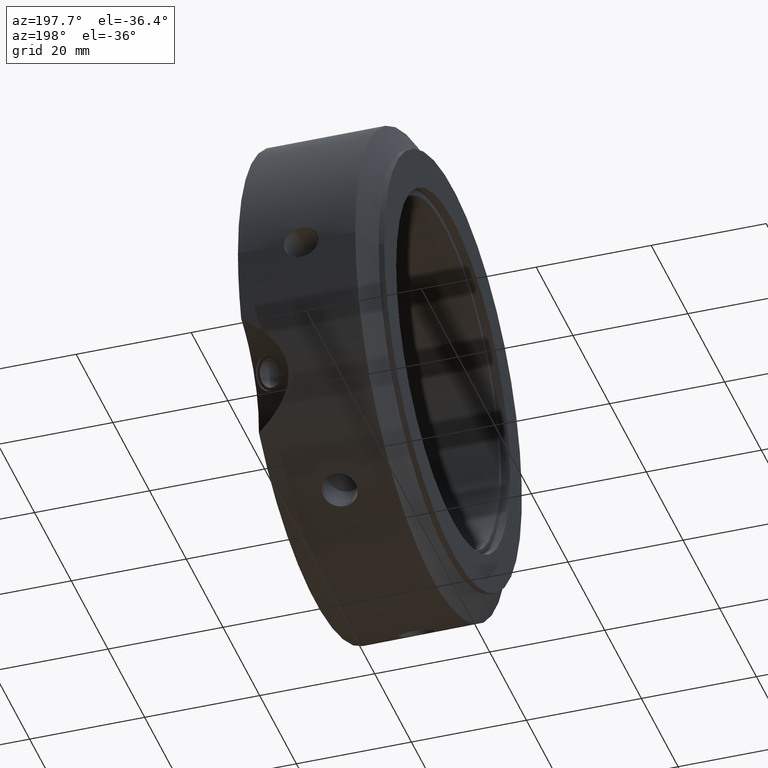
[diagram: clean part render]
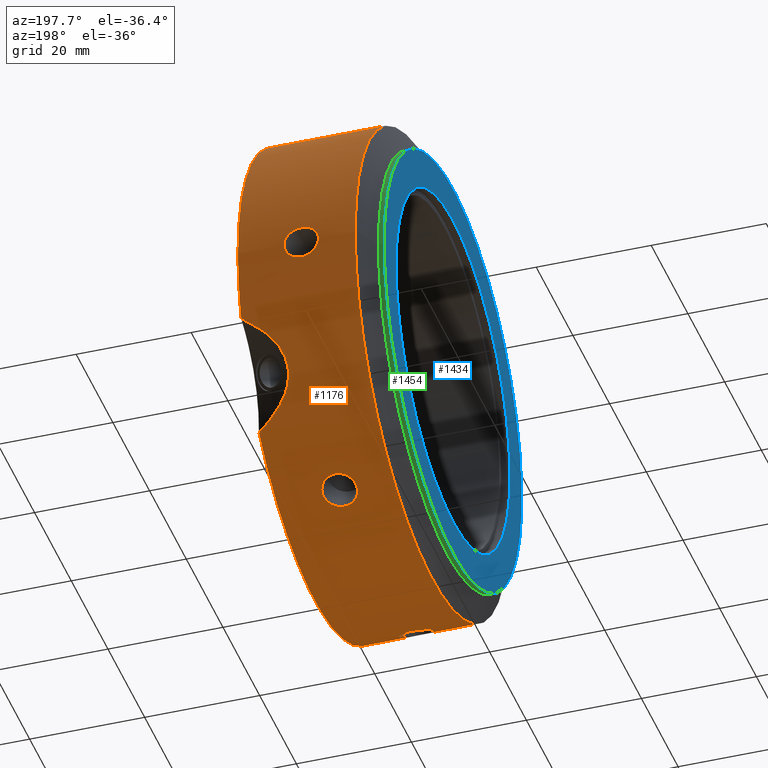
[diagram: same view with three faces highlighted in distinct colors, each labeled with its STEP entity id]
A machine part, auxiliary view with three faces highlighted in distinct colors.
Their STEP definitions:

[orange] entity #1176 — the highlighted cylindrical surface (bore or boss wall) has radius 42 mm, axis along (1, 0, 0).
#90=CARTESIAN_POINT('',(10.0,21.000000000000043,36.37306695894641));
#91=VERTEX_POINT('',#90);
#92=CARTESIAN_POINT('',(16.0,21.000000000000043,36.37306695894641));
#93=VERTEX_POINT('',#92);
#94=CARTESIAN_POINT('',(10.0,21.000000000000043,36.37306695894641));
#95=CARTESIAN_POINT('',(10.0,21.326339335730424,36.184654855615307));
#96=CARTESIAN_POINT('',(10.07533466498386,21.671559271009432,35.978885311008597));
#97=CARTESIAN_POINT('',(10.381535666751155,22.301532080152381,35.591829628988911));
#98=CARTESIAN_POINT('',(10.612394908988422,22.586438431574614,35.410787733298037));
#99=CARTESIAN_POINT('',(11.144964638746217,23.034190742379845,35.121178025303479));
#100=CARTESIAN_POINT('',(11.482221620102111,23.226945707765047,34.993321295956946));
#101=CARTESIAN_POINT('',(12.221321574865247,23.481998319643893,34.82268365881243));
#102=CARTESIAN_POINT('',(12.623175460991902,23.544436277006767,34.780159867343457));
#103=CARTESIAN_POINT('',(13.376824539008098,23.544436277006767,34.780159867343457));
#104=CARTESIAN_POINT('',(13.778678425134753,23.481998319643893,34.82268365881243));
#105=CARTESIAN_POINT('',(14.517778379897891,23.226945707765047,34.993321295956946));
#106=CARTESIAN_POINT('',(14.855035361253785,23.034190742379845,35.121178025303479));
#107=CARTESIAN_POINT('',(15.387605091011579,22.586438431574614,35.410787733298037));
#108=CARTESIAN_POINT('',(15.618464333248845,22.301532080152381,35.591829628988911));
#109=CARTESIAN_POINT('',(15.924665335016142,21.671559271009432,35.978885311008597));
#110=CARTESIAN_POINT('',(16.0,21.326339335730424,36.184654855615307));
#111=CARTESIAN_POINT('',(16.0,21.000000000000043,36.37306695894641));
#112=B_SPLINE_CURVE_WITH_KNOTS('',3,(#94,#95,#96,#97,#98,#99,#100,#101,#102,#103,#104,#105,#106,#107,#108,#109,#110,#111),.UNSPECIFIED.,.F.,.U.,(4,2,2,2,2,2,2,2,4),(0.452189247402177,0.565236509400836,0.678283771399495,0.791331133101924,0.904378494804354,1.017425856506783,1.130473218209213,1.243520480207872,1.356567742206531),.UNSPECIFIED.);
#113=EDGE_CURVE('',#91,#93,#112,.T.);
#115=CARTESIAN_POINT('',(16.0,21.000000000000043,36.37306695894641));
#116=CARTESIAN_POINT('',(16.0,20.673660664269661,36.561479062277513));
#117=CARTESIAN_POINT('',(15.92466533501614,20.322849043675582,36.757563523818597));
#118=CARTESIAN_POINT('',(15.618464333248845,19.672662585795955,37.109608139219993));
#119=CARTESIAN_POINT('',(15.387605091011578,19.373422529267252,37.265823329405748));
#120=CARTESIAN_POINT('',(14.855035361253782,18.898737009558754,37.508783351168987));
#121=CARTESIAN_POINT('',(14.517778379897887,18.691632351207272,37.611785683224888));
#122=CARTESIAN_POINT('',(13.77867842513475,18.416329516658941,37.747348905841285));
#123=CARTESIAN_POINT('',(13.376824539008098,18.348283854300135,37.780159867343457));
#124=CARTESIAN_POINT('',(13.0,18.348283854300135,37.780159867343457));
#125=CARTESIAN_POINT('',(12.623175460991902,18.348283854300135,37.780159867343457));
#126=CARTESIAN_POINT('',(12.221321574865254,18.416329516658941,37.747348905841285));
#127=CARTESIAN_POINT('',(11.482221620102116,18.691632351207268,37.611785683224895));
#128=CARTESIAN_POINT('',(11.144964638746217,18.898737009558751,37.508783351168987));
#129=CARTESIAN_POINT('',(10.612394908988422,19.373422529267245,37.265823329405748));
#130=CARTESIAN_POINT('',(10.381535666751159,19.672662585795951,37.109608139219993));
#131=CARTESIAN_POINT('',(10.075334664983862,20.322849043675582,36.757563523818597));
#132=CARTESIAN_POINT('',(9.999999999999998,20.673660664269665,36.561479062277506));
#133=CARTESIAN_POINT('',(9.999999999999998,21.000000000000046,36.37306695894641));
#134=B_SPLINE_CURVE_WITH_KNOTS('',3,(#115,#116,#117,#118,#119,#120,#121,#122,#123,#124,#125,#126,#127,#128,#129,#130,#131,#132,#133),.UNSPECIFIED.,.F.,.U.,(4,2,2,2,3,2,2,2,4),(1.356567742206531,1.46961500420519,1.582662266203849,1.695709627906278,1.808756989608708,1.921804351311137,2.034851713013566,2.147898975012225,2.260946237010884),.UNSPECIFIED.);
#135=EDGE_CURVE('',#93,#91,#134,.T.);
#202=CARTESIAN_POINT('',(10.0,42.000000000000014,-2.797762E-014));
#203=VERTEX_POINT('',#202);
#204=CARTESIAN_POINT('',(16.0,42.000000000000014,-2.886580E-014));
#205=VERTEX_POINT('',#204);
#206=CARTESIAN_POINT('',(10.0,42.000000000000014,-3.066991E-014));
#207=CARTESIAN_POINT('',(10.0,42.000000000000014,-0.376824206662228));
#208=CARTESIAN_POINT('',(10.07533466498386,41.994408314684939,-0.778678212810027));
#209=CARTESIAN_POINT('',(10.381535666751159,41.974194665948261,-1.517778510231108));
#210=CARTESIAN_POINT('',(10.612394908988422,41.959860960841795,-1.855035596107739));
#211=CARTESIAN_POINT('',(11.144964638746217,41.932927751938536,-2.387605325865534));
#212=CARTESIAN_POINT('',(11.482221620102111,41.918578058972244,-2.618464387267969));
#213=CARTESIAN_POINT('',(12.22132157486525,41.898327836302755,-2.924665247028883));
#214=CARTESIAN_POINT('',(12.623175460991902,41.892720131306831,-3.000000000000031));
#215=CARTESIAN_POINT('',(13.376824539008098,41.892720131306831,-3.000000000000031));
#216=CARTESIAN_POINT('',(13.778678425134753,41.898327836302755,-2.924665247028882));
#217=CARTESIAN_POINT('',(14.517778379897891,41.918578058972244,-2.618464387267969));
#218=CARTESIAN_POINT('',(14.855035361253783,41.932927751938536,-2.387605325865534));
#219=CARTESIAN_POINT('',(15.387605091011578,41.959860960841795,-1.85503559610774));
#220=CARTESIAN_POINT('',(15.618464333248843,41.974194665948261,-1.517778510231109));
#221=CARTESIAN_POINT('',(15.924665335016142,41.994408314684939,-0.778678212810028));
#222=CARTESIAN_POINT('',(16.0,42.000000000000014,-0.376824206662229));
#223=CARTESIAN_POINT('',(16.0,42.000000000000014,-3.164136E-014));
#224=B_SPLINE_CURVE_WITH_KNOTS('',3,(#206,#207,#208,#209,#210,#211,#212,#213,#214,#215,#216,#217,#218,#219,#220,#221,#222,#223),.UNSPECIFIED.,.F.,.U.,(4,2,2,2,2,2,2,2,4),(0.452189247402177,0.565236509400836,0.678283771399495,0.791331133101925,0.904378494804354,1.017425856506783,1.130473218209213,1.243520480207872,1.356567742206531),.UNSPECIFIED.);
#225=EDGE_CURVE('',#203,#205,#224,.T.);
#227=CARTESIAN_POINT('',(16.0,42.000000000000014,-3.122502E-014));
#228=CARTESIAN_POINT('',(16.0,42.000000000000014,0.376824206662166));
#229=CARTESIAN_POINT('',(15.924665335016142,41.994408314684939,0.778678212809965));
#230=CARTESIAN_POINT('',(15.618464333248843,41.974194665948261,1.517778510231046));
#231=CARTESIAN_POINT('',(15.387605091011578,41.959860960841795,1.855035596107677));
#232=CARTESIAN_POINT('',(14.855035361253783,41.932927751938536,2.387605325865472));
#233=CARTESIAN_POINT('',(14.517778379897891,41.918578058972244,2.618464387267907));
#234=CARTESIAN_POINT('',(13.778678425134752,41.898327836302755,2.924665247028822));
#235=CARTESIAN_POINT('',(13.376824539008098,41.892720131306831,2.99999999999997));
#236=CARTESIAN_POINT('',(13.0,41.892720131306831,2.99999999999997));
#237=CARTESIAN_POINT('',(12.623175460991902,41.892720131306831,2.99999999999997));
#238=CARTESIAN_POINT('',(12.221321574865247,41.898327836302762,2.924665247028821));
#239=CARTESIAN_POINT('',(11.482221620102111,41.918578058972251,2.618464387267908));
#240=CARTESIAN_POINT('',(11.144964638746217,41.932927751938536,2.387605325865473));
#241=CARTESIAN_POINT('',(10.612394908988422,41.959860960841795,1.855035596107677));
#242=CARTESIAN_POINT('',(10.381535666751159,41.974194665948261,1.517778510231047));
#243=CARTESIAN_POINT('',(10.07533466498386,41.994408314684939,0.778678212809966));
#244=CARTESIAN_POINT('',(10.0,42.000000000000014,0.376824206662166));
#245=CARTESIAN_POINT('',(10.0,42.000000000000014,-3.087808E-014));
#246=B_SPLINE_CURVE_WITH_KNOTS('',3,(#227,#228,#229,#230,#231,#232,#233,#234,#235,#236,#237,#238,#239,#240,#241,#242,#243,#244,#245),.UNSPECIFIED.,.F.,.U.,(4,2,2,2,3,2,2,2,4),(1.356567742206531,1.46961500420519,1.582662266203849,1.695709627906278,1.808756989608708,1.921804351311137,2.034851713013566,2.147898975012225,2.260946237010884),.UNSPECIFIED.);
#247=EDGE_CURVE('',#205,#203,#246,.T.);
#314=CARTESIAN_POINT('',(10.0,20.999999999999996,-36.373066958946445));
#315=VERTEX_POINT('',#314);
#316=CARTESIAN_POINT('',(16.0,20.999999999999996,-36.373066958946445));
#317=VERTEX_POINT('',#316);
#318=CARTESIAN_POINT('',(10.0,20.999999999999993,-36.373066958946438));
#319=CARTESIAN_POINT('',(10.0,20.673660664269615,-36.561479062277535));
#320=CARTESIAN_POINT('',(10.075334664983862,20.322849043675536,-36.757563523818618));
#321=CARTESIAN_POINT('',(10.381535666751159,19.672662585795901,-37.109608139220015));
#322=CARTESIAN_POINT('',(10.612394908988422,19.373422529267202,-37.265823329405777));
#323=CARTESIAN_POINT('',(11.144964638746217,18.898737009558705,-37.508783351169015));
#324=CARTESIAN_POINT('',(11.482221620102111,18.691632351207215,-37.611785683224916));
#325=CARTESIAN_POINT('',(12.221321574865245,18.416329516658887,-37.747348905841307));
#326=CARTESIAN_POINT('',(12.623175460991902,18.348283854300085,-37.780159867343485));
#327=CARTESIAN_POINT('',(13.376824539008098,18.348283854300085,-37.780159867343485));
#328=CARTESIAN_POINT('',(13.778678425134752,18.416329516658887,-37.747348905841314));
#329=CARTESIAN_POINT('',(14.517778379897885,18.691632351207211,-37.611785683224923));
#330=CARTESIAN_POINT('',(14.85503536125378,18.898737009558701,-37.508783351169022));
#331=CARTESIAN_POINT('',(15.387605091011576,19.373422529267195,-37.265823329405784));
#332=CARTESIAN_POINT('',(15.618464333248841,19.672662585795898,-37.109608139220015));
#333=CARTESIAN_POINT('',(15.92466533501614,20.322849043675536,-36.757563523818618));
#334=CARTESIAN_POINT('',(16.0,20.673660664269615,-36.561479062277535));
#335=CARTESIAN_POINT('',(16.0,20.999999999999996,-36.373066958946431));
#336=B_SPLINE_CURVE_WITH_KNOTS('',3,(#318,#319,#320,#321,#322,#323,#324,#325,#326,#327,#328,#329,#330,#331,#332,#333,#334,#335),.UNSPECIFIED.,.F.,.U.,(4,2,2,2,2,2,2,2,4),(0.452189247402177,0.565236509400836,0.678283771399495,0.791331133101924,0.904378494804353,1.017425856506783,1.130473218209212,1.243520480207871,1.356567742206531),.UNSPECIFIED.);
#337=EDGE_CURVE('',#315,#317,#336,.T.);
#339=CARTESIAN_POINT('',(16.0,20.999999999999986,-36.373066958946438));
#340=CARTESIAN_POINT('',(16.0,21.326339335730363,-36.184654855615342));
#341=CARTESIAN_POINT('',(15.924665335016142,21.671559271009379,-35.978885311008625));
#342=CARTESIAN_POINT('',(15.618464333248843,22.301532080152327,-35.59182962898894));
#343=CARTESIAN_POINT('',(15.387605091011579,22.586438431574571,-35.410787733298072));
#344=CARTESIAN_POINT('',(14.855035361253785,23.034190742379799,-35.121178025303514));
#345=CARTESIAN_POINT('',(14.517778379897893,23.226945707764997,-34.993321295956981));
#346=CARTESIAN_POINT('',(13.778678425134759,23.481998319643843,-34.822683658812458));
#347=CARTESIAN_POINT('',(13.376824539008098,23.544436277006717,-34.780159867343492));
#348=CARTESIAN_POINT('',(13.0,23.544436277006717,-34.780159867343492));
#349=CARTESIAN_POINT('',(12.623175460991902,23.544436277006717,-34.780159867343492));
#350=CARTESIAN_POINT('',(12.221321574865243,23.481998319643843,-34.822683658812458));
#351=CARTESIAN_POINT('',(11.482221620102109,23.226945707764997,-34.993321295956981));
#352=CARTESIAN_POINT('',(11.144964638746217,23.034190742379799,-35.121178025303514));
#353=CARTESIAN_POINT('',(10.612394908988424,22.586438431574571,-35.410787733298072));
#354=CARTESIAN_POINT('',(10.381535666751159,22.301532080152327,-35.59182962898894));
#355=CARTESIAN_POINT('',(10.07533466498386,21.671559271009379,-35.978885311008625));
#356=CARTESIAN_POINT('',(10.0,21.326339335730367,-36.184654855615342));
#357=CARTESIAN_POINT('',(10.0,20.999999999999993,-36.373066958946438));
#358=B_SPLINE_CURVE_WITH_KNOTS('',3,(#339,#340,#341,#342,#343,#344,#345,#346,#347,#348,#349,#350,#351,#352,#353,#354,#355,#356,#357),.UNSPECIFIED.,.F.,.U.,(4,2,2,2,3,2,2,2,4),(1.356567742206531,1.469615004205189,1.582662266203848,1.695709627906278,1.808756989608707,1.921804351311137,2.034851713013566,2.147898975012225,2.260946237010884),.UNSPECIFIED.);
#359=EDGE_CURVE('',#317,#315,#358,.T.);
#426=CARTESIAN_POINT('',(10.0,-21.000000000000018,-36.373066958946424));
#427=VERTEX_POINT('',#426);
#428=CARTESIAN_POINT('',(16.0,-21.000000000000021,-36.373066958946424));
#429=VERTEX_POINT('',#428);
#430=CARTESIAN_POINT('',(10.0,-21.000000000000021,-36.373066958946417));
#431=CARTESIAN_POINT('',(10.0,-21.326339335730403,-36.184654855615314));
#432=CARTESIAN_POINT('',(10.075334664983862,-21.671559271009407,-35.978885311008611));
#433=CARTESIAN_POINT('',(10.381535666751153,-22.301532080152349,-35.591829628988926));
#434=CARTESIAN_POINT('',(10.612394908988421,-22.586438431574596,-35.410787733298058));
#435=CARTESIAN_POINT('',(11.144964638746217,-23.034190742379828,-35.121178025303493));
#436=CARTESIAN_POINT('',(11.482221620102111,-23.226945707765022,-34.99332129595696));
#437=CARTESIAN_POINT('',(12.221321574865247,-23.481998319643868,-34.822683658812444));
#438=CARTESIAN_POINT('',(12.623175460991902,-23.544436277006746,-34.780159867343471));
#439=CARTESIAN_POINT('',(13.376824539008098,-23.544436277006746,-34.780159867343471));
#440=CARTESIAN_POINT('',(13.778678425134753,-23.481998319643868,-34.822683658812444));
#441=CARTESIAN_POINT('',(14.517778379897891,-23.226945707765022,-34.99332129595696));
#442=CARTESIAN_POINT('',(14.855035361253783,-23.034190742379828,-35.121178025303493));
#443=CARTESIAN_POINT('',(15.387605091011579,-22.586438431574596,-35.410787733298058));
#444=CARTESIAN_POINT('',(15.618464333248843,-22.301532080152356,-35.591829628988918));
#445=CARTESIAN_POINT('',(15.924665335016137,-21.671559271009414,-35.978885311008597));
#446=CARTESIAN_POINT('',(16.0,-21.326339335730399,-36.184654855615321));
#447=CARTESIAN_POINT('',(16.0,-21.000000000000018,-36.373066958946424));
#448=B_SPLINE_CURVE_WITH_KNOTS('',3,(#430,#431,#432,#433,#434,#435,#436,#437,#438,#439,#440,#441,#442,#443,#444,#445,#446,#447),.UNSPECIFIED.,.F.,.U.,(4,2,2,2,2,2,2,2,4),(0.452189247402177,0.565236509400836,0.678283771399495,0.791331133101924,0.904378494804354,1.017425856506783,1.130473218209213,1.243520480207871,1.35656774220653),.UNSPECIFIED.);
#449=EDGE_CURVE('',#427,#429,#448,.T.);
#451=CARTESIAN_POINT('',(16.0,-21.000000000000021,-36.373066958946424));
#452=CARTESIAN_POINT('',(16.0,-20.67366066426964,-36.56147906227752));
#453=CARTESIAN_POINT('',(15.92466533501614,-20.322849043675568,-36.757563523818604));
#454=CARTESIAN_POINT('',(15.618464333248843,-19.67266258579593,-37.109608139220001));
#455=CARTESIAN_POINT('',(15.387605091011578,-19.373422529267227,-37.265823329405762));
#456=CARTESIAN_POINT('',(14.855035361253783,-18.898737009558733,-37.508783351169008));
#457=CARTESIAN_POINT('',(14.517778379897891,-18.691632351207247,-37.611785683224902));
#458=CARTESIAN_POINT('',(13.778678425134753,-18.416329516658919,-37.747348905841292));
#459=CARTESIAN_POINT('',(13.376824539008098,-18.348283854300117,-37.780159867343464));
#460=CARTESIAN_POINT('',(13.0,-18.348283854300117,-37.780159867343464));
#461=CARTESIAN_POINT('',(12.623175460991902,-18.348283854300117,-37.780159867343464));
#462=CARTESIAN_POINT('',(12.221321574865247,-18.416329516658919,-37.747348905841292));
#463=CARTESIAN_POINT('',(11.482221620102111,-18.691632351207247,-37.611785683224902));
#464=CARTESIAN_POINT('',(11.144964638746217,-18.898737009558733,-37.508783351169008));
#465=CARTESIAN_POINT('',(10.612394908988422,-19.373422529267227,-37.265823329405762));
#466=CARTESIAN_POINT('',(10.381535666751159,-19.67266258579593,-37.109608139220001));
#467=CARTESIAN_POINT('',(10.07533466498386,-20.322849043675568,-36.757563523818604));
#468=CARTESIAN_POINT('',(10.0,-20.67366066426964,-36.56147906227752));
#469=CARTESIAN_POINT('',(10.0,-21.000000000000021,-36.373066958946424));
#470=B_SPLINE_CURVE_WITH_KNOTS('',3,(#451,#452,#453,#454,#455,#456,#457,#458,#459,#460,#461,#462,#463,#464,#465,#466,#467,#468,#469),.UNSPECIFIED.,.F.,.U.,(4,2,2,2,3,2,2,2,4),(1.35656774220653,1.469615004205189,1.582662266203849,1.695709627906278,1.808756989608707,1.921804351311137,2.034851713013566,2.147898975012225,2.260946237010884),.UNSPECIFIED.);
#471=EDGE_CURVE('',#429,#427,#470,.T.);
#538=CARTESIAN_POINT('',(10.0,-42.000000000000014,1.165734E-014));
#539=VERTEX_POINT('',#538);
#540=CARTESIAN_POINT('',(16.0,-42.000000000000014,1.332268E-014));
#541=VERTEX_POINT('',#540);
#542=CARTESIAN_POINT('',(10.0,-42.000000000000014,1.380840E-014));
#543=CARTESIAN_POINT('',(10.0,-42.000000000000014,0.376824206662211));
#544=CARTESIAN_POINT('',(10.07533466498386,-41.994408314684939,0.77867821281001));
#545=CARTESIAN_POINT('',(10.381535666751159,-41.974194665948261,1.517778510231092));
#546=CARTESIAN_POINT('',(10.612394908988422,-41.959860960841795,1.855035596107722));
#547=CARTESIAN_POINT('',(11.144964638746217,-41.932927751938536,2.387605325865517));
#548=CARTESIAN_POINT('',(11.482221620102111,-41.918578058972244,2.618464387267952));
#549=CARTESIAN_POINT('',(12.221321574865247,-41.898327836302755,2.924665247028865));
#550=CARTESIAN_POINT('',(12.623175460991902,-41.892720131306831,3.000000000000014));
#551=CARTESIAN_POINT('',(13.376824539008098,-41.892720131306831,3.000000000000014));
#552=CARTESIAN_POINT('',(13.778678425134752,-41.898327836302755,2.924665247028866));
#553=CARTESIAN_POINT('',(14.517778379897885,-41.918578058972244,2.618464387267955));
#554=CARTESIAN_POINT('',(14.855035361253782,-41.932927751938529,2.387605325865518));
#555=CARTESIAN_POINT('',(15.387605091011578,-41.959860960841795,1.855035596107723));
#556=CARTESIAN_POINT('',(15.618464333248843,-41.974194665948261,1.517778510231092));
#557=CARTESIAN_POINT('',(15.924665335016142,-41.994408314684939,0.778678212810011));
#558=CARTESIAN_POINT('',(16.0,-42.000000000000014,0.376824206662212));
#559=CARTESIAN_POINT('',(16.0,-42.000000000000014,1.491862E-014));
#560=B_SPLINE_CURVE_WITH_KNOTS('',3,(#542,#543,#544,#545,#546,#547,#548,#549,#550,#551,#552,#553,#554,#555,#556,#557,#558,#559),.UNSPECIFIED.,.F.,.U.,(4,2,2,2,2,2,2,2,4),(0.452189247402177,0.565236509400836,0.678283771399495,0.791331133101924,0.904378494804354,1.017425856506783,1.130473218209213,1.243520480207872,1.356567742206531),.UNSPECIFIED.);
#561=EDGE_CURVE('',#539,#541,#560,.T.);
#563=CARTESIAN_POINT('',(16.0,-42.000000000000014,1.443290E-014));
#564=CARTESIAN_POINT('',(16.0,-42.000000000000014,-0.376824206662183));
#565=CARTESIAN_POINT('',(15.924665335016142,-41.994408314684939,-0.778678212809981));
#566=CARTESIAN_POINT('',(15.618464333248843,-41.974194665948261,-1.517778510231063));
#567=CARTESIAN_POINT('',(15.387605091011578,-41.959860960841795,-1.855035596107694));
#568=CARTESIAN_POINT('',(14.855035361253783,-41.932927751938536,-2.387605325865489));
#569=CARTESIAN_POINT('',(14.517778379897891,-41.918578058972244,-2.618464387267924));
#570=CARTESIAN_POINT('',(13.778678425134753,-41.898327836302755,-2.924665247028838));
#571=CARTESIAN_POINT('',(13.376824539008098,-41.892720131306831,-2.999999999999987));
#572=CARTESIAN_POINT('',(13.0,-41.892720131306831,-2.999999999999987));
#573=CARTESIAN_POINT('',(12.623175460991902,-41.892720131306831,-2.999999999999987));
#574=CARTESIAN_POINT('',(12.221321574865247,-41.898327836302755,-2.924665247028838));
#575=CARTESIAN_POINT('',(11.482221620102111,-41.918578058972244,-2.618464387267925));
#576=CARTESIAN_POINT('',(11.144964638746217,-41.932927751938536,-2.38760532586549));
#577=CARTESIAN_POINT('',(10.612394908988422,-41.959860960841795,-1.855035596107694));
#578=CARTESIAN_POINT('',(10.381535666751159,-41.974194665948261,-1.517778510231064));
#579=CARTESIAN_POINT('',(10.07533466498386,-41.994408314684939,-0.778678212809983));
#580=CARTESIAN_POINT('',(10.0,-42.000000000000014,-0.376824206662183));
#581=CARTESIAN_POINT('',(10.0,-42.000000000000014,1.387779E-014));
#582=B_SPLINE_CURVE_WITH_KNOTS('',3,(#563,#564,#565,#566,#567,#568,#569,#570,#571,#572,#573,#574,#575,#576,#577,#578,#579,#580,#581),.UNSPECIFIED.,.F.,.U.,(4,2,2,2,3,2,2,2,4),(1.356567742206531,1.46961500420519,1.582662266203849,1.695709627906278,1.808756989608708,1.921804351311137,2.034851713013567,2.147898975012226,2.260946237010885),.UNSPECIFIED.);
#583=EDGE_CURVE('',#541,#539,#582,.T.);
#687=CARTESIAN_POINT('',(10.0,-21.0,36.373066958946431));
#688=VERTEX_POINT('',#687);
#689=CARTESIAN_POINT('',(16.0,-20.999999999999996,36.373066958946431));
#690=VERTEX_POINT('',#689);
#691=CARTESIAN_POINT('',(10.0,-20.999999999999996,36.373066958946431));
#692=CARTESIAN_POINT('',(10.0,-20.673660664269615,36.561479062277535));
#693=CARTESIAN_POINT('',(10.075334664983862,-20.322849043675539,36.757563523818618));
#694=CARTESIAN_POINT('',(10.381535666751155,-19.672662585795905,37.109608139220015));
#695=CARTESIAN_POINT('',(10.612394908988422,-19.373422529267206,37.265823329405777));
#696=CARTESIAN_POINT('',(11.144964638746217,-18.898737009558712,37.508783351169015));
#697=CARTESIAN_POINT('',(11.482221620102113,-18.691632351207225,37.611785683224916));
#698=CARTESIAN_POINT('',(12.22132157486525,-18.416329516658895,37.747348905841307));
#699=CARTESIAN_POINT('',(12.623175460991902,-18.348283854300096,37.780159867343485));
#700=CARTESIAN_POINT('',(13.376824539008098,-18.348283854300096,37.780159867343485));
#701=CARTESIAN_POINT('',(13.778678425134752,-18.416329516658895,37.747348905841307));
#702=CARTESIAN_POINT('',(14.517778379897887,-18.691632351207222,37.611785683224916));
#703=CARTESIAN_POINT('',(14.855035361253785,-18.898737009558708,37.508783351169015));
#704=CARTESIAN_POINT('',(15.387605091011579,-19.373422529267206,37.265823329405777));
#705=CARTESIAN_POINT('',(15.618464333248845,-19.672662585795905,37.109608139220015));
#706=CARTESIAN_POINT('',(15.92466533501614,-20.322849043675539,36.757563523818618));
#707=CARTESIAN_POINT('',(16.0,-20.673660664269615,36.561479062277535));
#708=CARTESIAN_POINT('',(16.0,-20.999999999999996,36.373066958946431));
#709=B_SPLINE_CURVE_WITH_KNOTS('',3,(#691,#692,#693,#694,#695,#696,#697,#698,#699,#700,#701,#702,#703,#704,#705,#706,#707,#708),.UNSPECIFIED.,.F.,.U.,(4,2,2,2,2,2,2,2,4),(0.452189247402177,0.565236509400836,0.678283771399495,0.791331133101924,0.904378494804354,1.017425856506783,1.130473218209212,1.243520480207871,1.35656774220653),.UNSPECIFIED.);
#710=EDGE_CURVE('',#688,#690,#709,.T.);
#712=CARTESIAN_POINT('',(16.0,-20.999999999999996,36.373066958946438));
#713=CARTESIAN_POINT('',(16.0,-21.326339335730378,36.184654855615335));
#714=CARTESIAN_POINT('',(15.92466533501614,-21.671559271009386,35.978885311008625));
#715=CARTESIAN_POINT('',(15.618464333248845,-22.301532080152331,35.59182962898894));
#716=CARTESIAN_POINT('',(15.387605091011578,-22.586438431574575,35.410787733298072));
#717=CARTESIAN_POINT('',(14.855035361253783,-23.03419074237981,35.121178025303514));
#718=CARTESIAN_POINT('',(14.517778379897891,-23.226945707765001,34.993321295956974));
#719=CARTESIAN_POINT('',(13.778678425134753,-23.481998319643846,34.822683658812451));
#720=CARTESIAN_POINT('',(13.376824539008098,-23.544436277006724,34.780159867343485));
#721=CARTESIAN_POINT('',(13.0,-23.544436277006724,34.780159867343485));
#722=CARTESIAN_POINT('',(12.623175460991902,-23.544436277006724,34.780159867343485));
#723=CARTESIAN_POINT('',(12.221321574865247,-23.481998319643846,34.822683658812451));
#724=CARTESIAN_POINT('',(11.482221620102111,-23.226945707765001,34.993321295956974));
#725=CARTESIAN_POINT('',(11.144964638746217,-23.03419074237981,35.121178025303514));
#726=CARTESIAN_POINT('',(10.612394908988421,-22.586438431574571,35.410787733298072));
#727=CARTESIAN_POINT('',(10.381535666751155,-22.301532080152331,35.59182962898894));
#728=CARTESIAN_POINT('',(10.075334664983862,-21.671559271009386,35.978885311008625));
#729=CARTESIAN_POINT('',(10.0,-21.326339335730378,36.184654855615335));
#730=CARTESIAN_POINT('',(10.0,-20.999999999999996,36.373066958946438));
#731=B_SPLINE_CURVE_WITH_KNOTS('',3,(#712,#713,#714,#715,#716,#717,#718,#719,#720,#721,#722,#723,#724,#725,#726,#727,#728,#729,#730),.UNSPECIFIED.,.F.,.U.,(4,2,2,2,3,2,2,2,4),(1.35656774220653,1.469615004205189,1.582662266203848,1.695709627906278,1.808756989608707,1.921804351311137,2.034851713013566,2.147898975012225,2.260946237010884),.UNSPECIFIED.);
#732=EDGE_CURVE('',#690,#688,#731,.T.);
#873=CARTESIAN_POINT('',(23.999999999999993,30.566651886041992,-28.804162763002271));
#874=VERTEX_POINT('',#873);
#875=CARTESIAN_POINT('',(23.999999999999993,40.228462630522721,-12.069415660446792));
#876=VERTEX_POINT('',#875);
#884=CARTESIAN_POINT('',(23.999999999999989,40.228462630522714,-12.069415660446781));
#885=CARTESIAN_POINT('',(23.407909019775133,40.112899948154933,-12.454596615341728));
#886=CARTESIAN_POINT('',(22.834789574577169,39.987302523093021,-12.853270807511707));
#887=CARTESIAN_POINT('',(20.973022393634754,39.520184823865819,-14.256232965415826));
#888=CARTESIAN_POINT('',(19.645364935195538,39.081292328484984,-15.45094360159419));
#889=CARTESIAN_POINT('',(18.178231537469124,38.217545357491801,-17.433846793689078));
#890=CARTESIAN_POINT('',(17.775668896788503,37.895074927230461,-18.127180536038022));
#891=CARTESIAN_POINT('',(17.222169596961031,37.182311016816705,-19.547560601872824));
#892=CARTESIAN_POINT('',(17.071796769724504,36.79180702149732,-20.274720936497296));
#893=CARTESIAN_POINT('',(17.071796769724504,35.954326896395521,-21.72527906350275));
#894=CARTESIAN_POINT('',(17.22216959696102,35.519839571646031,-22.427045611040892));
#895=CARTESIAN_POINT('',(17.775668896788492,34.646136306810952,-23.754507297277343));
#896=CARTESIAN_POINT('',(18.178231537469117,34.2069268877665,-24.380441753027434));
#897=CARTESIAN_POINT('',(19.645364935195538,32.921555835663654,-26.119920168396838));
#898=CARTESIAN_POINT('',(20.973022393634743,32.106352322252143,-27.097367537016176));
#899=CARTESIAN_POINT('',(22.834789574577158,31.124910302572545,-28.20338441005633));
#900=CARTESIAN_POINT('',(23.407909019775133,30.842447036851066,-28.511492066894842));
#901=CARTESIAN_POINT('',(23.999999999999986,30.566651886041981,-28.804162763002275));
#902=B_SPLINE_CURVE_WITH_KNOTS('',3,(#884,#885,#886,#887,#888,#889,#890,#891,#892,#893,#894,#895,#896,#897,#898,#899,#900,#901),.UNSPECIFIED.,.F.,.U.,(4,2,2,2,2,2,2,2,4),(2.273709544953543,2.484482356085511,2.98697043114659,3.238214468677129,3.489458506207669,3.740702543738209,3.991946581268748,4.494434656329828,4.705207467461794),.UNSPECIFIED.);
#903=EDGE_CURVE('',#876,#874,#902,.T.);
#1044=CARTESIAN_POINT('',(23.999999999999993,-40.228462630522728,-12.069415660446738));
#1045=VERTEX_POINT('',#1044);
#1046=CARTESIAN_POINT('',(24.0,-30.566651886041988,-28.804162763002278));
#1047=VERTEX_POINT('',#1046);
#1055=CARTESIAN_POINT('',(24.000000000000007,-30.566651886041992,-28.804162763002267));
#1056=CARTESIAN_POINT('',(23.3580146530715,-30.865687763106241,-28.486829270934905));
#1057=CARTESIAN_POINT('',(22.738424966562722,-31.172502558060842,-28.151424076032864));
#1058=CARTESIAN_POINT('',(20.865843765415818,-32.171120464538376,-27.020066249147963));
#1059=CARTESIAN_POINT('',(19.571577470679699,-32.975525218730205,-26.050779518921221));
#1060=CARTESIAN_POINT('',(18.144449762544927,-34.24226540777984,-24.330523525853533));
#1061=CARTESIAN_POINT('',(17.753516443253716,-34.674880806022557,-23.712146194441885));
#1062=CARTESIAN_POINT('',(17.216900686911263,-35.53470355765549,-22.403081913847664));
#1063=CARTESIAN_POINT('',(17.0717967697245,-35.96190474654825,-21.712153842026083));
#1064=CARTESIAN_POINT('',(17.071796769724497,-36.78422917134462,-20.287846157973924));
#1065=CARTESIAN_POINT('',(17.216900686911259,-37.168989839283519,-19.572415039955096));
#1066=CARTESIAN_POINT('',(17.753516443253702,-37.872761385648445,-18.173254553992027));
#1067=CARTESIAN_POINT('',(18.144449762544927,-38.191984164654002,-17.489409963339693));
#1068=CARTESIAN_POINT('',(19.571577470679696,-39.048399461138231,-15.532252783094155));
#1069=CARTESIAN_POINT('',(20.865843765415804,-39.485624015969833,-14.350974465925674));
#1070=CARTESIAN_POINT('',(22.738424966562718,-39.966099681583749,-12.920467076799646));
#1071=CARTESIAN_POINT('',(23.358014653071489,-40.103161703452884,-12.487055072661031));
#1072=CARTESIAN_POINT('',(24.0,-40.228462630522728,-12.069415660446747));
#1073=B_SPLINE_CURVE_WITH_KNOTS('',3,(#1055,#1056,#1057,#1058,#1059,#1060,#1061,#1062,#1063,#1064,#1065,#1066,#1067,#1068,#1069,#1070,#1071,#1072),.UNSPECIFIED.,.F.,.U.,(4,2,2,2,2,2,2,2,4),(2.204097069782458,2.432186423697076,2.925581078574897,3.172278406013807,3.418975733452718,3.665673060891628,3.912370388330538,4.405765043208358,4.633854397122978),.UNSPECIFIED.);
#1074=EDGE_CURVE('',#1047,#1045,#1073,.T.);
#1082=CARTESIAN_POINT('',(13.799038105676651,0.0,0.0));
#1083=DIRECTION('',(1.0,0.0,0.0));
#1084=DIRECTION('',(0.0,1.0,0.0));
#1085=AXIS2_PLACEMENT_3D('',#1082,#1083,#1084);
#1086=CYLINDRICAL_SURFACE('',#1085,42.000000000000014);
#1087=CARTESIAN_POINT('',(3.598076211353308,42.0,0.0));
#1088=VERTEX_POINT('',#1087);
#1089=CARTESIAN_POINT('',(3.598076211353308,0.0,0.0));
#1090=DIRECTION('',(1.0,0.0,0.0));
#1091=DIRECTION('',(0.0,1.0,0.0));
#1092=AXIS2_PLACEMENT_3D('',#1089,#1090,#1091);
#1093=CIRCLE('',#1092,42.0);
#1094=EDGE_CURVE('',#1088,#1088,#1093,.T.);
#1095=ORIENTED_EDGE('',*,*,#1094,.T.);
#1096=EDGE_LOOP('',(#1095));
#1097=FACE_OUTER_BOUND('',#1096,.T.);
#1098=ORIENTED_EDGE('',*,*,#113,.T.);
#1099=ORIENTED_EDGE('',*,*,#135,.T.);
#1100=EDGE_LOOP('',(#1098,#1099));
#1101=FACE_BOUND('',#1100,.T.);
#1102=ORIENTED_EDGE('',*,*,#225,.T.);
#1103=ORIENTED_EDGE('',*,*,#247,.T.);
#1104=EDGE_LOOP('',(#1102,#1103));
#1105=FACE_BOUND('',#1104,.T.);
#1106=ORIENTED_EDGE('',*,*,#337,.T.);
#1107=ORIENTED_EDGE('',*,*,#359,.T.);
#1108=EDGE_LOOP('',(#1106,#1107));
#1109=FACE_BOUND('',#1108,.T.);
#1110=ORIENTED_EDGE('',*,*,#449,.T.);
#1111=ORIENTED_EDGE('',*,*,#471,.T.);
#1112=EDGE_LOOP('',(#1110,#1111));
#1113=FACE_BOUND('',#1112,.T.);
#1114=ORIENTED_EDGE('',*,*,#561,.T.);
#1115=ORIENTED_EDGE('',*,*,#583,.T.);
#1116=EDGE_LOOP('',(#1114,#1115));
#1117=FACE_BOUND('',#1116,.T.);
#1118=ORIENTED_EDGE('',*,*,#710,.T.);
#1119=ORIENTED_EDGE('',*,*,#732,.T.);
#1120=EDGE_LOOP('',(#1118,#1119));
#1121=FACE_BOUND('',#1120,.T.);
#1122=ORIENTED_EDGE('',*,*,#903,.T.);
#1123=CARTESIAN_POINT('',(23.999999999999993,0.0,0.0));
#1124=DIRECTION('',(1.0,0.0,0.0));
#1125=DIRECTION('',(0.0,1.0,0.0));
#1126=AXIS2_PLACEMENT_3D('',#1123,#1124,#1125);
#1127=CIRCLE('',#1126,42.000000000000014);
#1128=EDGE_CURVE('',#1047,#874,#1127,.T.);
#1129=ORIENTED_EDGE('',*,*,#1128,.F.);
#1130=ORIENTED_EDGE('',*,*,#1074,.T.);
#1131=CARTESIAN_POINT('',(23.999999999999993,-9.661810744480739,40.873578423449018));
#1132=VERTEX_POINT('',#1131);
#1133=CARTESIAN_POINT('',(23.999999999999993,0.0,0.0));
#1134=DIRECTION('',(1.0,0.0,0.0));
#1135=DIRECTION('',(0.0,1.0,0.0));
#1136=AXIS2_PLACEMENT_3D('',#1133,#1134,#1135);
#1137=CIRCLE('',#1136,42.000000000000014);
#1138=EDGE_CURVE('',#1132,#1045,#1137,.T.);
#1139=ORIENTED_EDGE('',*,*,#1138,.F.);
#1140=CARTESIAN_POINT('',(23.999999999999993,9.661810744480739,40.873578423449018));
#1141=VERTEX_POINT('',#1140);
#1142=CARTESIAN_POINT('',(23.999999999999993,-9.661810744480739,40.873578423449018));
#1143=CARTESIAN_POINT('',(23.961534238392357,-9.636385805380087,40.879588441638163));
#1144=CARTESIAN_POINT('',(23.923150888673419,-9.610891180002399,40.885589884136508));
#1145=CARTESIAN_POINT('',(22.639525166283843,-8.754078853534695,41.086433815220019));
#1146=CARTESIAN_POINT('',(21.481657816824939,-7.850656475330381,41.272149897746914));
#1147=CARTESIAN_POINT('',(19.572673669369742,-5.971478286304874,41.582919908540518));
#1148=CARTESIAN_POINT('',(18.69101355975581,-4.908424265642248,41.728877118549505));
#1149=CARTESIAN_POINT('',(17.748733226706612,-3.145788243736505,41.886178933963798));
#1150=CARTESIAN_POINT('',(17.496890978515047,-2.52973182813308,41.928463922915));
#1151=CARTESIAN_POINT('',(17.158217337960696,-1.273038946287002,41.98541415715718));
#1152=CARTESIAN_POINT('',(17.071796769724511,-0.632288203710325,42.000000000000014));
#1153=CARTESIAN_POINT('',(17.071796769724507,0.632288203710325,42.000000000000014));
#1154=CARTESIAN_POINT('',(17.158217337960696,1.273038946287003,41.98541415715718));
#1155=CARTESIAN_POINT('',(17.496890978515047,2.52973182813308,41.928463922915));
#1156=CARTESIAN_POINT('',(17.748733226706612,3.145788243736504,41.886178933963798));
#1157=CARTESIAN_POINT('',(18.69101355975581,4.908424265642248,41.728877118549505));
#1158=CARTESIAN_POINT('',(19.572673669369742,5.971478286304874,41.582919908540518));
#1159=CARTESIAN_POINT('',(21.481657816824935,7.850656475330382,41.272149897746914));
#1160=CARTESIAN_POINT('',(22.639525166283839,8.754078853534699,41.086433815220019));
#1161=CARTESIAN_POINT('',(23.923150888673412,9.610891180002405,40.885589884136508));
#1162=CARTESIAN_POINT('',(23.96153423839236,9.636385805380089,40.879588441638163));
#1163=CARTESIAN_POINT('',(23.999999999999993,9.661810744480739,40.873578423449018));
#1164=B_SPLINE_CURVE_WITH_KNOTS('',3,(#1142,#1143,#1144,#1145,#1146,#1147,#1148,#1149,#1150,#1151,#1152,#1153,#1154,#1155,#1156,#1157,#1158,#1159,#1160,#1161,#1162,#1163),.UNSPECIFIED.,.F.,.U.,(4,2,2,2,2,2,2,2,2,2,4),(1.27568442540128,1.288897591768966,1.718530122358621,2.097903044584816,2.287589505697913,2.47727596681101,2.666962427924108,2.856648889037205,3.236021811263399,3.665654341853054,3.678867508220741),.UNSPECIFIED.);
#1165=EDGE_CURVE('',#1132,#1141,#1164,.T.);
#1166=ORIENTED_EDGE('',*,*,#1165,.T.);
#1167=CARTESIAN_POINT('',(23.999999999999993,0.0,0.0));
#1168=DIRECTION('',(1.0,0.0,0.0));
#1169=DIRECTION('',(0.0,1.0,0.0));
#1170=AXIS2_PLACEMENT_3D('',#1167,#1168,#1169);
#1171=CIRCLE('',#1170,42.000000000000014);
#1172=EDGE_CURVE('',#876,#1141,#1171,.T.);
#1173=ORIENTED_EDGE('',*,*,#1172,.F.);
#1174=EDGE_LOOP('',(#1122,#1129,#1130,#1139,#1166,#1173));
#1175=FACE_BOUND('',#1174,.T.);
#1176=ADVANCED_FACE('',(#1097,#1101,#1105,#1109,#1113,#1117,#1121,#1175),#1086,.T.);

[blue] entity #1434 — the highlighted planar face has unit normal (-1, 0, 0).
#1400=CARTESIAN_POINT('',(-8.604228E-015,31.0,0.0));
#1401=VERTEX_POINT('',#1400);
#1402=CARTESIAN_POINT('',(-8.604228E-015,0.0,0.0));
#1403=DIRECTION('',(1.0,0.0,0.0));
#1404=DIRECTION('',(0.0,1.0,0.0));
#1405=AXIS2_PLACEMENT_3D('',#1402,#1403,#1404);
#1406=CIRCLE('',#1405,31.0);
#1407=EDGE_CURVE('',#1401,#1401,#1406,.T.);
#1415=CARTESIAN_POINT('',(-8.743006E-015,34.25,0.0));
#1416=DIRECTION('',(-1.0,0.0,0.0));
#1417=DIRECTION('',(0.0,0.0,1.0));
#1418=AXIS2_PLACEMENT_3D('',#1415,#1416,#1417);
#1419=PLANE('',#1418);
#1420=CARTESIAN_POINT('',(-8.881784E-015,37.499999999999993,0.0));
#1421=VERTEX_POINT('',#1420);
#1422=CARTESIAN_POINT('',(-8.881784E-015,0.0,0.0));
#1423=DIRECTION('',(1.0,0.0,0.0));
#1424=DIRECTION('',(0.0,1.0,0.0));
#1425=AXIS2_PLACEMENT_3D('',#1422,#1423,#1424);
#1426=CIRCLE('',#1425,37.499999999999993);
#1427=EDGE_CURVE('',#1421,#1421,#1426,.T.);
#1428=ORIENTED_EDGE('',*,*,#1427,.F.);
#1429=EDGE_LOOP('',(#1428));
#1430=FACE_OUTER_BOUND('',#1429,.T.);
#1431=ORIENTED_EDGE('',*,*,#1407,.T.);
#1432=EDGE_LOOP('',(#1431));
#1433=FACE_BOUND('',#1432,.T.);
#1434=ADVANCED_FACE('',(#1430,#1433),#1419,.T.);

[green] entity #1454 — the highlighted cylindrical surface (bore or boss wall) has radius 37.5 mm, axis along (1, 0, 0).
#1420=CARTESIAN_POINT('',(-8.881784E-015,37.499999999999993,0.0));
#1421=VERTEX_POINT('',#1420);
#1422=CARTESIAN_POINT('',(-8.881784E-015,0.0,0.0));
#1423=DIRECTION('',(1.0,0.0,0.0));
#1424=DIRECTION('',(0.0,1.0,0.0));
#1425=AXIS2_PLACEMENT_3D('',#1422,#1423,#1424);
#1426=CIRCLE('',#1425,37.499999999999993);
#1427=EDGE_CURVE('',#1421,#1421,#1426,.T.);
#1435=CARTESIAN_POINT('',(0.499999999999991,0.0,0.0));
#1436=DIRECTION('',(1.0,0.0,0.0));
#1437=DIRECTION('',(0.0,1.0,0.0));
#1438=AXIS2_PLACEMENT_3D('',#1435,#1436,#1437);
#1439=CYLINDRICAL_SURFACE('',#1438,37.499999999999993);
#1440=CARTESIAN_POINT('',(0.999999999999991,37.499999999999993,0.0));
#1441=VERTEX_POINT('',#1440);
#1442=CARTESIAN_POINT('',(0.999999999999991,0.0,0.0));
#1443=DIRECTION('',(1.0,0.0,0.0));
#1444=DIRECTION('',(0.0,1.0,0.0));
#1445=AXIS2_PLACEMENT_3D('',#1442,#1443,#1444);
#1446=CIRCLE('',#1445,37.499999999999993);
#1447=EDGE_CURVE('',#1441,#1441,#1446,.T.);
#1448=ORIENTED_EDGE('',*,*,#1447,.F.);
#1449=EDGE_LOOP('',(#1448));
#1450=FACE_OUTER_BOUND('',#1449,.T.);
#1451=ORIENTED_EDGE('',*,*,#1427,.T.);
#1452=EDGE_LOOP('',(#1451));
#1453=FACE_BOUND('',#1452,.T.);
#1454=ADVANCED_FACE('',(#1450,#1453),#1439,.T.);